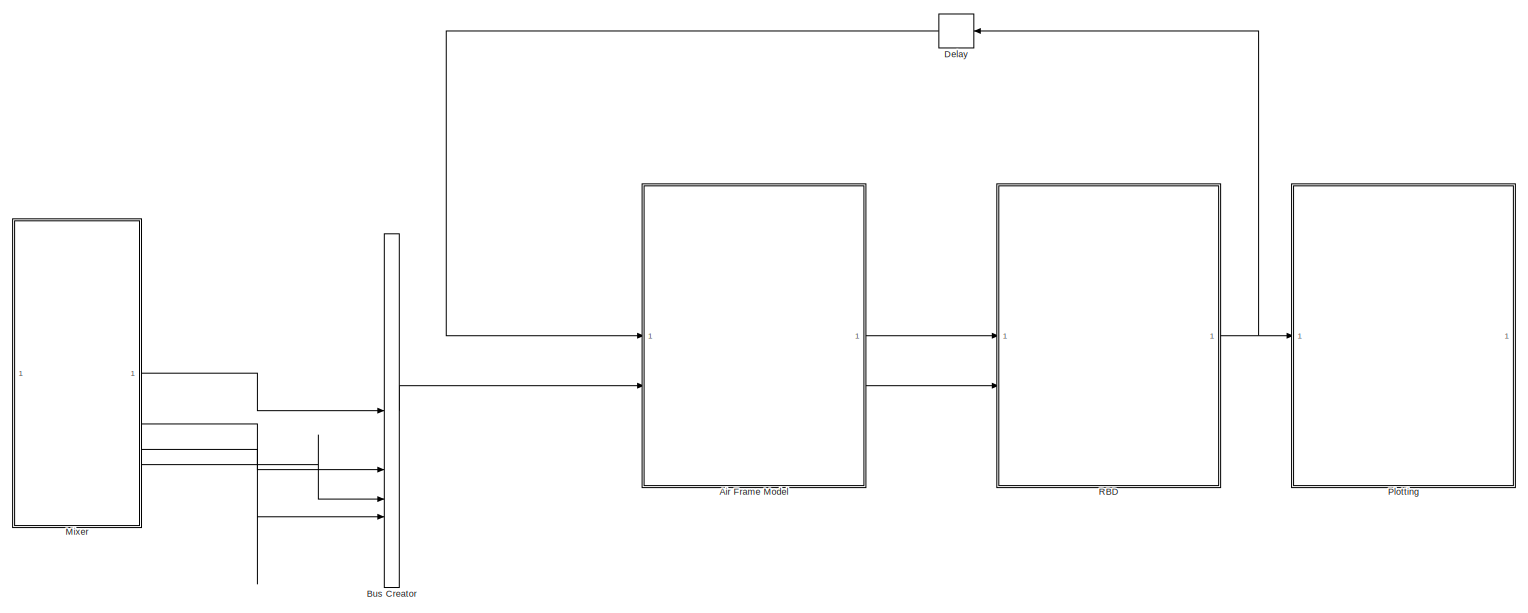
[diagram: root canvas - part 1/3, top center region]
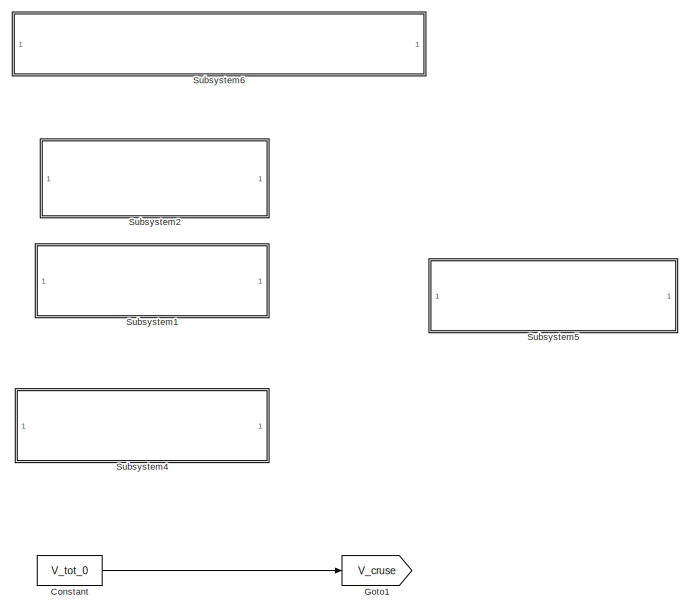
[diagram: root canvas - part 2/3, bottom right region]
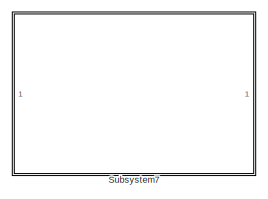
[diagram: root canvas - part 3/3, bottom center region]
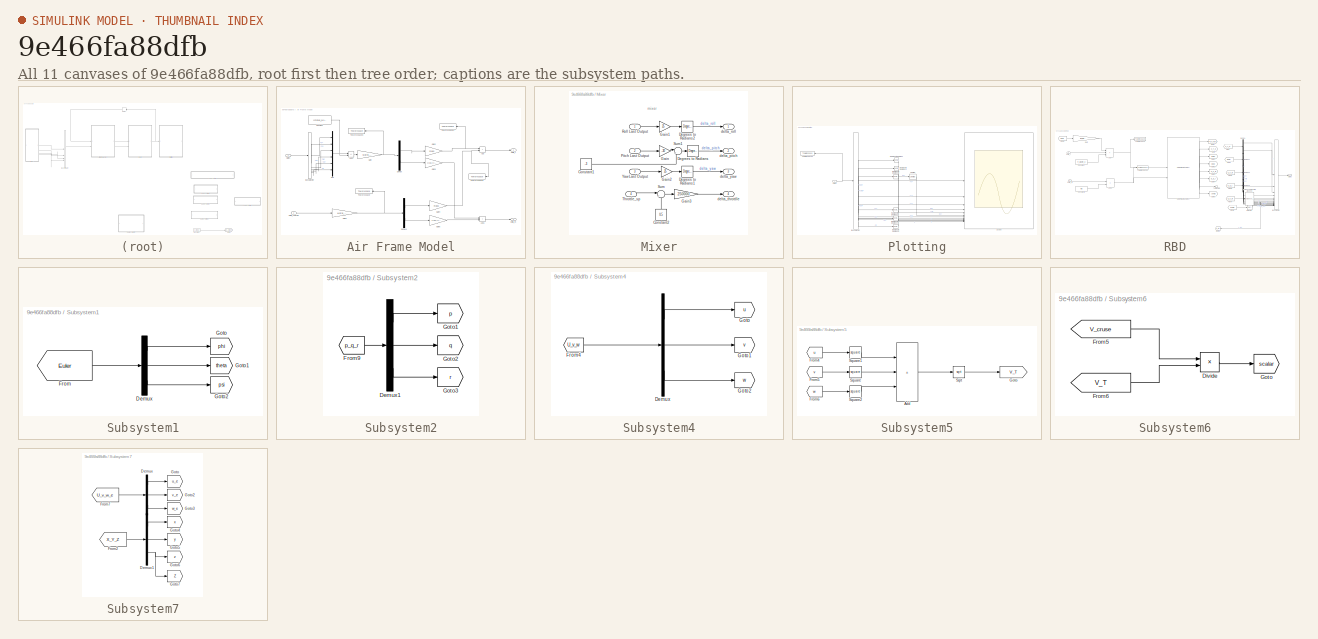
[diagram: thumbnail index - all 11 canvases of the model, root first then tree order]
MODEL slx_9e466fa88dfb
KIND model
CONFIG AbsTol = auto
CONFIG EnableMultiTasking = off
CONFIG FixedStep = auto
CONFIG MaxStep = auto
CONFIG MinStep = auto
CONFIG RelTol = 1e-3
CONFIG SampleTimeConstraint = Unconstrained
CONFIG SolverName = VariableStepAuto
CONFIG StartTime = 0.0
CONFIG StopTime = 10.0
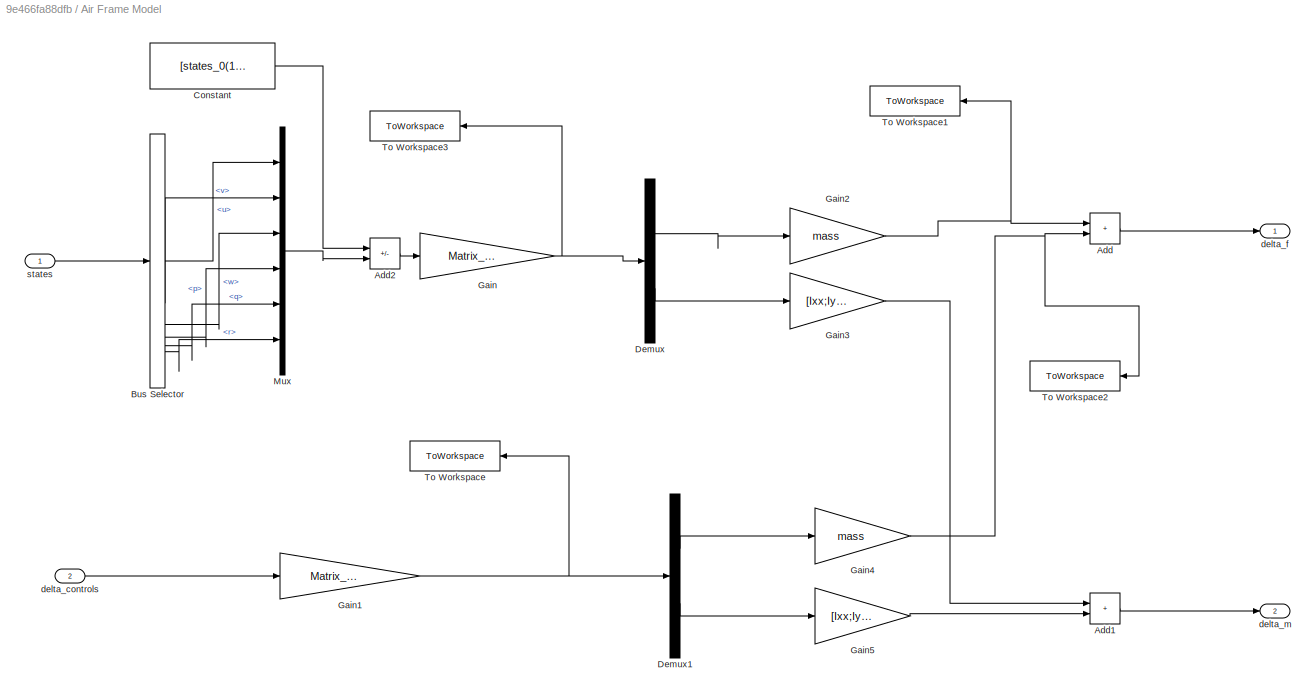
BLOCK [SubSystem] Air Frame Model
BLOCK [Sum] Air Frame Model/Add
  IconShape = rectangular
BLOCK [Sum] Air Frame Model/Add1
  IconShape = rectangular
BLOCK [Sum] Air Frame Model/Add2
  IconShape = rectangular
  Inputs = -+
BLOCK [BusSelector] Air Frame Model/Bus Selector
  OutputSignals = u,v,w,p,q,r,w_dot
BLOCK [Constant] Air Frame Model/Constant
  Value = [states_0(1:6)]
BLOCK [Demux] Air Frame Model/Demux
  Outputs = 2
BLOCK [Demux] Air Frame Model/Demux1
  Outputs = 2
BLOCK [Gain] Air Frame Model/Gain
  Gain = Matrix_states(:,1:6)
  Multiplication = Matrix(K*u)
BLOCK [Gain] Air Frame Model/Gain1
  Gain = Matrix_controls
  Multiplication = Matrix(K*u)
BLOCK [Gain] Air Frame Model/Gain2
  Gain = mass
BLOCK [Gain] Air Frame Model/Gain3
  Gain = [Ixx;Iyy;Izz]
BLOCK [Gain] Air Frame Model/Gain4
  Gain = mass
BLOCK [Gain] Air Frame Model/Gain5
  Gain = [Ixx;Iyy;Izz]
BLOCK [Mux] Air Frame Model/Mux
  DisplayOption = bar
  Inputs = 6
BLOCK [ToWorkspace] Air Frame Model/To Workspace
  FixptAsFi = on
  MaxDataPoints = inf
  NameLocation = top
  SampleTime = -1
  VariableName = controls
BLOCK [ToWorkspace] Air Frame Model/To Workspace1
  FixptAsFi = on
  MaxDataPoints = inf
  NameLocation = top
  SampleTime = -1
  VariableName = delta_States
BLOCK [ToWorkspace] Air Frame Model/To Workspace2
  FixptAsFi = on
  MaxDataPoints = inf
  NameLocation = top
  SampleTime = -1
  VariableName = delta_Controll
BLOCK [ToWorkspace] Air Frame Model/To Workspace3
  FixptAsFi = on
  MaxDataPoints = inf
  NameLocation = top
  SampleTime = -1
  VariableName = delta_States1
BLOCK [Inport] Air Frame Model/delta_controls
  Port = 2
BLOCK [Outport] Air Frame Model/delta_f
BLOCK [Outport] Air Frame Model/delta_m
  Port = 2
BLOCK [Inport] Air Frame Model/states
BLOCK [BusCreator] Bus Creator
  DisplayOption = bar
  InheritFromInputs = on
  Inputs = 4
BLOCK [Constant] Constant
  Value = V_tot_0
BLOCK [Delay] Delay
  DelayLength = 1
  InitialCondition = delayStruct
  InputPortMap = u0
  NameLocation = top
BLOCK [Goto] Goto1
  GotoTag = V_cruse
  TagVisibility = global
BLOCK [SubSystem] Mixer
BLOCK [Constant] Mixer/Constant1
  Value = -3
BLOCK [Constant] Mixer/Constant2
  NameLocation = right
  Value = 0.5
BLOCK [Reference] Mixer/Degrees to Radians  REF=simulink_extras/Transformations/Degrees to
Radians
  SourceBlock = simulink_extras/Transformations/Degrees to\nRadians
  SourceType = DegreesToRadians
BLOCK [Reference] Mixer/Degrees to Radians1  REF=simulink_extras/Transformations/Degrees to
Radians
  SourceBlock = simulink_extras/Transformations/Degrees to\nRadians
  SourceType = DegreesToRadians
BLOCK [Reference] Mixer/Degrees to Radians2  REF=simulink_extras/Transformations/Degrees to
Radians
  SourceBlock = simulink_extras/Transformations/Degrees to\nRadians
  SourceType = DegreesToRadians
BLOCK [Gain] Mixer/Gain
  Gain = -30
BLOCK [Gain] Mixer/Gain1
  Gain = 25
BLOCK [Gain] Mixer/Gain2
  Gain = 25
BLOCK [Gain] Mixer/Gain3
  Gain = 250000
BLOCK [Inport] Mixer/Pitch Last Output
  Port = 2
BLOCK [Inport] Mixer/Roll Last Output
BLOCK [Sum] Mixer/Sum
  Inputs = |+-
BLOCK [Sum] Mixer/Sum1
  Inputs = |+-
BLOCK [Inport] Mixer/Throttle_sp
  Port = 4
BLOCK [Inport] Mixer/Yaw Last Output
  Port = 3
BLOCK [Outport] Mixer/delta_pitch
  Port = 2
BLOCK [Outport] Mixer/delta_roll
BLOCK [Outport] Mixer/delta_throttlle
  Port = 4
BLOCK [Outport] Mixer/delta_yaw
  Port = 3
BLOCK [SubSystem] Plotting
BLOCK [BusSelector] Plotting/Bus Selector
  OutputSignals = x,y,z,phi,ceta,psi,u,v,w,p,q,r
BLOCK [Reference] Plotting/Radians to Degrees  REF=simulink_extras/Transformations/Radians
to Degrees
  SourceBlock = simulink_extras/Transformations/Radians\nto Degrees
  SourceType = RadiansToDegrees
BLOCK [Reference] Plotting/Radians to Degrees1  REF=simulink_extras/Transformations/Radians
to Degrees
  SourceBlock = simulink_extras/Transformations/Radians\nto Degrees
  SourceType = RadiansToDegrees
BLOCK [Reference] Plotting/Radians to Degrees2  REF=simulink_extras/Transformations/Radians
to Degrees
  SourceBlock = simulink_extras/Transformations/Radians\nto Degrees
  SourceType = RadiansToDegrees
BLOCK [Reference] Plotting/Radians to Degrees3  REF=simulink_extras/Transformations/Radians
to Degrees
  SourceBlock = simulink_extras/Transformations/Radians\nto Degrees
  SourceType = RadiansToDegrees
BLOCK [Reference] Plotting/Radians to Degrees4  REF=simulink_extras/Transformations/Radians
to Degrees
  SourceBlock = simulink_extras/Transformations/Radians\nto Degrees
  SourceType = RadiansToDegrees
BLOCK [Reference] Plotting/Radians to Degrees5  REF=simulink_extras/Transformations/Radians
to Degrees
  SourceBlock = simulink_extras/Transformations/Radians\nto Degrees
  SourceType = RadiansToDegrees
BLOCK [Scope] Plotting/Scope
  Floating = off
  NumInputPorts = 12
  ScopeSpecificationString = Simulink.scopes.TimeScopeBlockCfg('CurrentConfiguration', extmgr.ConfigurationSet(extmgr.Configuration('Core','General UI',true,'FigureColor',[1 1 1]),extmgr.Configuration('Core','Source UI',true),extmgr.Configuration('Sources','WiredSimulink',true,'DataLoggingVariableName','ScopeData1'),extmgr.Configuration('Visuals','Time Domain',true,'SerializedDisplays',{struct('MinYLimReal','-298.644','MaxYLi...<+11143ch>
BLOCK [ToWorkspace] Plotting/To Workspace3
  FixptAsFi = on
  MaxDataPoints = inf
  NameLocation = top
  SampleTime = -1
  VariableName = states
BLOCK [Reference] Plotting/Unwrap  REF=dspsigops/Unwrap
  SourceBlock = dspsigops/Unwrap
  SourceType = Unwrap
  UserDataPersistent = on
BLOCK [Inport] Plotting/states
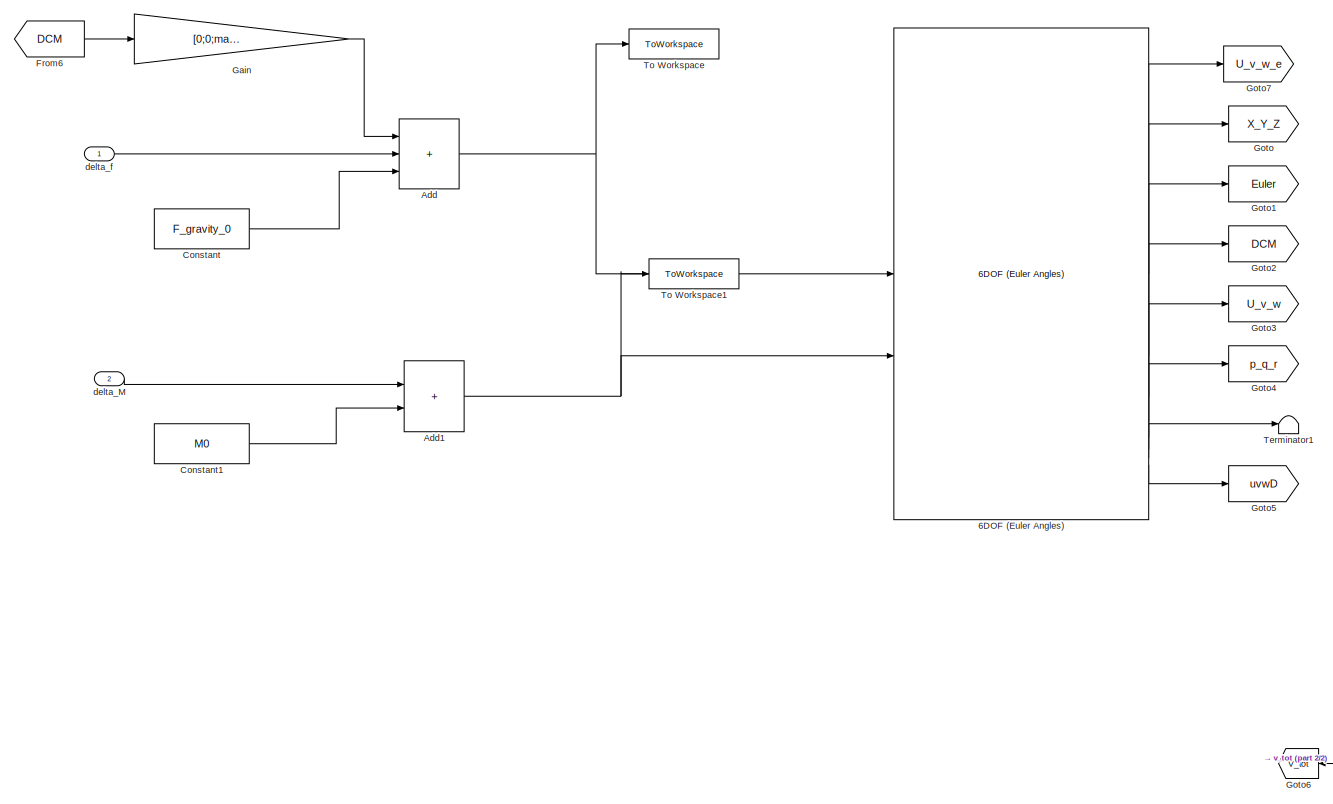
[diagram: RBD - part 1/2, center side, full height]
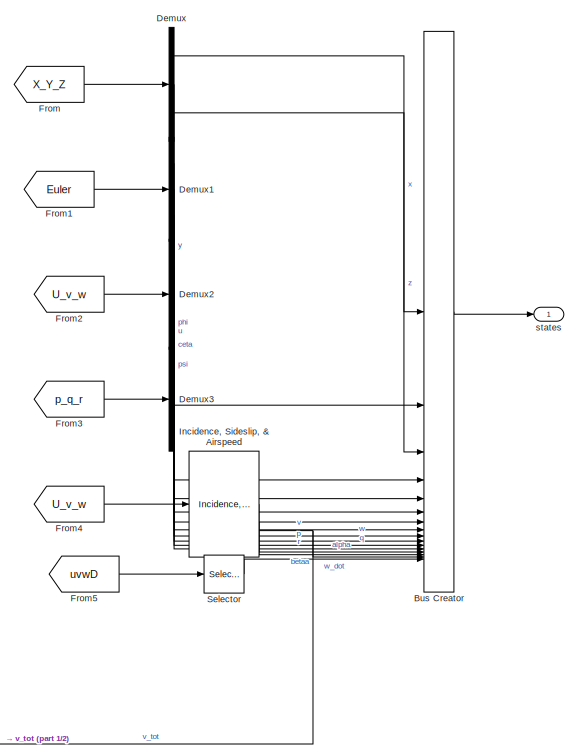
[diagram: RBD - part 2/2, right side, full height]
BLOCK [SubSystem] RBD
BLOCK [Reference] RBD/6DOF (Euler Angles)  REF=shared6dof/6DOF (Euler Angles)
  LibrarySourceBlock = aerolib6dof2/6DOF (Euler Angles)
  SourceBlock = shared6dof/6DOF (Euler Angles)
  SourceType = 6DOF EoM (Body Axis)
BLOCK [Sum] RBD/Add
  IconShape = rectangular
  Inputs = +++
BLOCK [Sum] RBD/Add1
  IconShape = rectangular
BLOCK [BusCreator] RBD/Bus Creator
  DisplayOption = bar
  InheritFromInputs = on
  Inputs = 16
BLOCK [Constant] RBD/Constant
  Value = F_gravity_0
BLOCK [Constant] RBD/Constant1
  Value = M0
BLOCK [Demux] RBD/Demux
  Outputs = 3
BLOCK [Demux] RBD/Demux1
  Outputs = 3
BLOCK [Demux] RBD/Demux2
  Outputs = 3
BLOCK [Demux] RBD/Demux3
  Outputs = 3
BLOCK [From] RBD/From
  GotoTag = X_Y_Z
  TagVisibility = global
BLOCK [From] RBD/From1
  GotoTag = Euler
  TagVisibility = global
BLOCK [From] RBD/From2
  GotoTag = U_v_w
  TagVisibility = global
BLOCK [From] RBD/From3
  GotoTag = p_q_r
  TagVisibility = global
BLOCK [From] RBD/From4
  GotoTag = U_v_w
  TagVisibility = global
BLOCK [From] RBD/From5
  GotoTag = uvwD
  TagVisibility = global
BLOCK [From] RBD/From6
  GotoTag = DCM
  TagVisibility = global
BLOCK [Gain] RBD/Gain
  Gain = [0;0;mass*gravity]
  Multiplication = Matrix(u*K)
BLOCK [Goto] RBD/Goto
  GotoTag = X_Y_Z
  TagVisibility = global
BLOCK [Goto] RBD/Goto1
  GotoTag = Euler
  TagVisibility = global
BLOCK [Goto] RBD/Goto2
  GotoTag = DCM
  TagVisibility = global
BLOCK [Goto] RBD/Goto3
  GotoTag = U_v_w
  TagVisibility = global
BLOCK [Goto] RBD/Goto4
  GotoTag = p_q_r
  TagVisibility = global
BLOCK [Goto] RBD/Goto5
  GotoTag = uvwD
  TagVisibility = global
BLOCK [Goto] RBD/Goto6
  GotoTag = V_tot
  NameLocation = top
  TagVisibility = global
BLOCK [Goto] RBD/Goto7
  GotoTag = U_v_w_e
  TagVisibility = global
BLOCK [Reference] RBD/Incidence, Sideslip, & Airspeed  REF=aerolibasang/Incidence, Sideslip,
& Airspeed
  SourceBlock = aerolibasang/Incidence, Sideslip,\n& Airspeed
  SourceType = Incidence,Sideslip,&Airspeed
BLOCK [Selector] RBD/Selector
  IndexOptions = Index vector (dialog)
  Indices = [3]
  InputPortWidth = 3
  OutputSizes = 1
BLOCK [Terminator] RBD/Terminator1
BLOCK [ToWorkspace] RBD/To Workspace
  FixptAsFi = on
  MaxDataPoints = inf
  SampleTime = -1
  VariableName = Forces
BLOCK [ToWorkspace] RBD/To Workspace1
  FixptAsFi = on
  MaxDataPoints = inf
  SampleTime = -1
  VariableName = Moments
BLOCK [Inport] RBD/delta_M
  Port = 2
BLOCK [Inport] RBD/delta_f
BLOCK [Outport] RBD/states
BLOCK [SubSystem] Subsystem1
BLOCK [Demux] Subsystem1/Demux
  Outputs = 3
BLOCK [From] Subsystem1/From
  GotoTag = Euler
  TagVisibility = global
BLOCK [Goto] Subsystem1/Goto
  GotoTag = phi
  TagVisibility = global
BLOCK [Goto] Subsystem1/Goto1
  GotoTag = theta
  TagVisibility = global
BLOCK [Goto] Subsystem1/Goto2
  GotoTag = psi
  TagVisibility = global
BLOCK [SubSystem] Subsystem2
BLOCK [Demux] Subsystem2/Demux1
  Outputs = 3
BLOCK [From] Subsystem2/From9
  GotoTag = p_q_r
  TagVisibility = global
BLOCK [Goto] Subsystem2/Goto1
  GotoTag = p
  TagVisibility = global
BLOCK [Goto] Subsystem2/Goto2
  GotoTag = q
  TagVisibility = global
BLOCK [Goto] Subsystem2/Goto3
  GotoTag = r
  TagVisibility = global
BLOCK [SubSystem] Subsystem4
BLOCK [Demux] Subsystem4/Demux
  Outputs = 3
BLOCK [From] Subsystem4/From4
  GotoTag = U_v_w
  TagVisibility = global
BLOCK [Goto] Subsystem4/Goto
  GotoTag = u
  TagVisibility = global
BLOCK [Goto] Subsystem4/Goto1
  GotoTag = v
  TagVisibility = global
BLOCK [Goto] Subsystem4/Goto2
  GotoTag = w
  TagVisibility = global
BLOCK [SubSystem] Subsystem5
BLOCK [Sum] Subsystem5/Add
  IconShape = rectangular
  Inputs = +++
BLOCK [From] Subsystem5/From4
  GotoTag = u
  TagVisibility = global
BLOCK [From] Subsystem5/From5
  GotoTag = v
  TagVisibility = global
BLOCK [From] Subsystem5/From6
  GotoTag = w
  TagVisibility = global
BLOCK [Goto] Subsystem5/Goto
  GotoTag = V_T
  TagVisibility = global
BLOCK [Sqrt] Subsystem5/Sqrt
BLOCK [Math] Subsystem5/Square
  Operator = square
BLOCK [Math] Subsystem5/Square1
  Operator = square
BLOCK [Math] Subsystem5/Square2
  Operator = square
BLOCK [SubSystem] Subsystem6
BLOCK [Product] Subsystem6/Divide
  Inputs = */
BLOCK [From] Subsystem6/From5
  GotoTag = V_cruse
  TagVisibility = global
BLOCK [From] Subsystem6/From6
  GotoTag = V_T
  TagVisibility = global
BLOCK [Goto] Subsystem6/Goto
  GotoTag = scalar
  TagVisibility = global
BLOCK [SubSystem] Subsystem7
BLOCK [Demux] Subsystem7/Demux
  Outputs = 3
BLOCK [Demux] Subsystem7/Demux1
  Outputs = 3
BLOCK [From] Subsystem7/From2
  GotoTag = X_Y_Z
  TagVisibility = global
BLOCK [From] Subsystem7/From7
  GotoTag = U_v_w_e
  TagVisibility = global
BLOCK [Goto] Subsystem7/Goto
  GotoTag = u_e
  TagVisibility = global
BLOCK [Goto] Subsystem7/Goto2
  GotoTag = v_e
  TagVisibility = global
BLOCK [Goto] Subsystem7/Goto3
  GotoTag = w_e
  TagVisibility = global
BLOCK [Goto] Subsystem7/Goto4
  GotoTag = x
  TagVisibility = global
BLOCK [Goto] Subsystem7/Goto5
  GotoTag = y
  TagVisibility = global
BLOCK [Goto] Subsystem7/Goto6
  GotoTag = z
  TagVisibility = global
BLOCK [Goto] Subsystem7/Goto7
  GotoTag = Z
  TagVisibility = global
ANNOTATION Mixer: mixer
LINE Air Frame Model/Add1:1 -> Air Frame Model/delta_m:1
LINE Air Frame Model/Add2:1 -> Air Frame Model/Gain:1
LINE Air Frame Model/Add:1 -> Air Frame Model/delta_f:1
LINE Air Frame Model/Bus Selector:1 -> Air Frame Model/Mux:1
LINE Air Frame Model/Bus Selector:2 -> Air Frame Model/Mux:2
LINE Air Frame Model/Bus Selector:3 -> Air Frame Model/Mux:3
LINE Air Frame Model/Bus Selector:4 -> Air Frame Model/Mux:4
LINE Air Frame Model/Bus Selector:5 -> Air Frame Model/Mux:5
LINE Air Frame Model/Bus Selector:6 -> Air Frame Model/Mux:6
LINE Air Frame Model/Constant:1 -> Air Frame Model/Add2:1
LINE Air Frame Model/Demux1:1 -> Air Frame Model/Gain4:1
LINE Air Frame Model/Demux1:2 -> Air Frame Model/Gain5:1
LINE Air Frame Model/Demux:1 -> Air Frame Model/Gain2:1
LINE Air Frame Model/Demux:2 -> Air Frame Model/Gain3:1
NET Air Frame Model/Gain1:1 -> Air Frame Model/Demux1:1, Air Frame Model/To Workspace:1
NET Air Frame Model/Gain2:1 -> Air Frame Model/Add:1, Air Frame Model/To Workspace1:1
LINE Air Frame Model/Gain3:1 -> Air Frame Model/Add1:1
NET Air Frame Model/Gain4:1 -> Air Frame Model/Add:2, Air Frame Model/To Workspace2:1
LINE Air Frame Model/Gain5:1 -> Air Frame Model/Add1:2
NET Air Frame Model/Gain:1 -> Air Frame Model/Demux:1, Air Frame Model/To Workspace3:1
LINE Air Frame Model/Mux:1 -> Air Frame Model/Add2:2
LINE Air Frame Model/delta_controls:1 -> Air Frame Model/Gain1:1
LINE Air Frame Model/states:1 -> Air Frame Model/Bus Selector:1
LINE Air Frame Model:1 -> RBD:1
LINE Air Frame Model:2 -> RBD:2
LINE Bus Creator:1 -> Air Frame Model:2
LINE Constant:1 -> Goto1:1
LINE Delay:1 -> Air Frame Model:1
LINE Mixer/Constant1:1 -> Mixer/Sum1:2
LINE Mixer/Constant2:1 -> Mixer/Sum:2
LINE Mixer/Degrees to Radians1:1 -> Mixer/delta_yaw:1
LINE Mixer/Degrees to Radians2:1 -> Mixer/delta_roll:1
LINE Mixer/Degrees to Radians:1 -> Mixer/delta_pitch:1
LINE Mixer/Gain1:1 -> Mixer/Degrees to Radians2:1
LINE Mixer/Gain2:1 -> Mixer/Degrees to Radians1:1
LINE Mixer/Gain3:1 -> Mixer/delta_throttlle:1
LINE Mixer/Gain:1 -> Mixer/Sum1:1
LINE Mixer/Pitch Last Output:1 -> Mixer/Gain:1
LINE Mixer/Roll Last Output:1 -> Mixer/Gain1:1
LINE Mixer/Sum1:1 -> Mixer/Degrees to Radians:1
LINE Mixer/Sum:1 -> Mixer/Gain3:1
LINE Mixer/Throttle_sp:1 -> Mixer/Sum:1
LINE Mixer/Yaw Last Output:1 -> Mixer/Gain2:1
LINE Mixer:1 -> Bus Creator:1
LINE Mixer:2 -> Bus Creator:2
LINE Mixer:3 -> Bus Creator:4
LINE Mixer:4 -> Bus Creator:3
LINE Plotting/Bus Selector:1 -> Plotting/Scope:1
LINE Plotting/Bus Selector:10 -> Plotting/Radians to Degrees3:1
LINE Plotting/Bus Selector:11 -> Plotting/Radians to Degrees4:1
LINE Plotting/Bus Selector:12 -> Plotting/Radians to Degrees5:1
LINE Plotting/Bus Selector:2 -> Plotting/Scope:2
LINE Plotting/Bus Selector:3 -> Plotting/Scope:3
LINE Plotting/Bus Selector:4 -> Plotting/Radians to Degrees:1
LINE Plotting/Bus Selector:5 -> Plotting/Radians to Degrees1:1
LINE Plotting/Bus Selector:6 -> Plotting/Radians to Degrees2:1
LINE Plotting/Bus Selector:7 -> Plotting/Scope:7
LINE Plotting/Bus Selector:8 -> Plotting/Scope:8
LINE Plotting/Bus Selector:9 -> Plotting/Scope:9
LINE Plotting/Radians to Degrees1:1 -> Plotting/Scope:5
LINE Plotting/Radians to Degrees2:1 -> Plotting/Unwrap:1
LINE Plotting/Radians to Degrees3:1 -> Plotting/Scope:10
LINE Plotting/Radians to Degrees4:1 -> Plotting/Scope:11
LINE Plotting/Radians to Degrees5:1 -> Plotting/Scope:12
LINE Plotting/Radians to Degrees:1 -> Plotting/Scope:4
LINE Plotting/Unwrap:1 -> Plotting/Scope:6
NET Plotting/states:1 -> Plotting/Bus Selector:1, Plotting/To Workspace3:1
LINE RBD/6DOF (Euler Angles):1 -> RBD/Goto7:1
LINE RBD/6DOF (Euler Angles):2 -> RBD/Goto:1
LINE RBD/6DOF (Euler Angles):3 -> RBD/Goto1:1
LINE RBD/6DOF (Euler Angles):4 -> RBD/Goto2:1
LINE RBD/6DOF (Euler Angles):5 -> RBD/Goto3:1
LINE RBD/6DOF (Euler Angles):6 -> RBD/Goto4:1
LINE RBD/6DOF (Euler Angles):7 -> RBD/Terminator1:1
LINE RBD/6DOF (Euler Angles):8 -> RBD/Goto5:1
NET RBD/Add1:1 -> RBD/6DOF (Euler Angles):2, RBD/To Workspace1:1
NET RBD/Add:1 -> RBD/6DOF (Euler Angles):1, RBD/To Workspace:1
LINE RBD/Bus Creator:1 -> RBD/states:1
LINE RBD/Constant1:1 -> RBD/Add1:2
LINE RBD/Constant:1 -> RBD/Add:3
LINE RBD/Demux1:1 -> RBD/Bus Creator:4
LINE RBD/Demux1:2 -> RBD/Bus Creator:5
LINE RBD/Demux1:3 -> RBD/Bus Creator:6
LINE RBD/Demux2:1 -> RBD/Bus Creator:7
LINE RBD/Demux2:2 -> RBD/Bus Creator:8
LINE RBD/Demux2:3 -> RBD/Bus Creator:9
LINE RBD/Demux3:1 -> RBD/Bus Creator:10
LINE RBD/Demux3:2 -> RBD/Bus Creator:11
LINE RBD/Demux3:3 -> RBD/Bus Creator:12
LINE RBD/Demux:1 -> RBD/Bus Creator:1
LINE RBD/Demux:2 -> RBD/Bus Creator:2
LINE RBD/Demux:3 -> RBD/Bus Creator:3
LINE RBD/From1:1 -> RBD/Demux1:1
LINE RBD/From2:1 -> RBD/Demux2:1
LINE RBD/From3:1 -> RBD/Demux3:1
LINE RBD/From4:1 -> RBD/Incidence, Sideslip, & Airspeed:1
LINE RBD/From5:1 -> RBD/Selector:1
LINE RBD/From6:1 -> RBD/Gain:1
LINE RBD/From:1 -> RBD/Demux:1
LINE RBD/Gain:1 -> RBD/Add:1
LINE RBD/Incidence, Sideslip, & Airspeed:1 -> RBD/Bus Creator:13
LINE RBD/Incidence, Sideslip, & Airspeed:2 -> RBD/Bus Creator:14
NET RBD/Incidence, Sideslip, & Airspeed:3 -> RBD/Bus Creator:15, RBD/Goto6:1
LINE RBD/Selector:1 -> RBD/Bus Creator:16
LINE RBD/delta_M:1 -> RBD/Add1:1
LINE RBD/delta_f:1 -> RBD/Add:2
NET RBD:1 -> Delay:1, Plotting:1
LINE Subsystem1/Demux:1 -> Subsystem1/Goto:1
LINE Subsystem1/Demux:2 -> Subsystem1/Goto1:1
LINE Subsystem1/Demux:3 -> Subsystem1/Goto2:1
LINE Subsystem1/From:1 -> Subsystem1/Demux:1
LINE Subsystem2/Demux1:1 -> Subsystem2/Goto1:1
LINE Subsystem2/Demux1:2 -> Subsystem2/Goto2:1
LINE Subsystem2/Demux1:3 -> Subsystem2/Goto3:1
LINE Subsystem2/From9:1 -> Subsystem2/Demux1:1
LINE Subsystem4/Demux:1 -> Subsystem4/Goto:1
LINE Subsystem4/Demux:2 -> Subsystem4/Goto1:1
LINE Subsystem4/Demux:3 -> Subsystem4/Goto2:1
LINE Subsystem4/From4:1 -> Subsystem4/Demux:1
LINE Subsystem5/Add:1 -> Subsystem5/Sqrt:1
LINE Subsystem5/From4:1 -> Subsystem5/Square1:1
LINE Subsystem5/From5:1 -> Subsystem5/Square:1
LINE Subsystem5/From6:1 -> Subsystem5/Square2:1
LINE Subsystem5/Sqrt:1 -> Subsystem5/Goto:1
LINE Subsystem5/Square1:1 -> Subsystem5/Add:1
LINE Subsystem5/Square2:1 -> Subsystem5/Add:3
LINE Subsystem5/Square:1 -> Subsystem5/Add:2
LINE Subsystem6/Divide:1 -> Subsystem6/Goto:1
LINE Subsystem6/From5:1 -> Subsystem6/Divide:1
LINE Subsystem6/From6:1 -> Subsystem6/Divide:2
LINE Subsystem7/Demux1:1 -> Subsystem7/Goto4:1
LINE Subsystem7/Demux1:2 -> Subsystem7/Goto5:1
NET Subsystem7/Demux1:3 -> Subsystem7/Goto6:1, Subsystem7/Goto7:1
LINE Subsystem7/Demux:1 -> Subsystem7/Goto:1
LINE Subsystem7/Demux:2 -> Subsystem7/Goto2:1
LINE Subsystem7/Demux:3 -> Subsystem7/Goto3:1
LINE Subsystem7/From2:1 -> Subsystem7/Demux1:1
LINE Subsystem7/From7:1 -> Subsystem7/Demux:1
note: NET lines group one-source signal fan-out (src -> all destinations, sorted); 1:1 wires keep LINE
